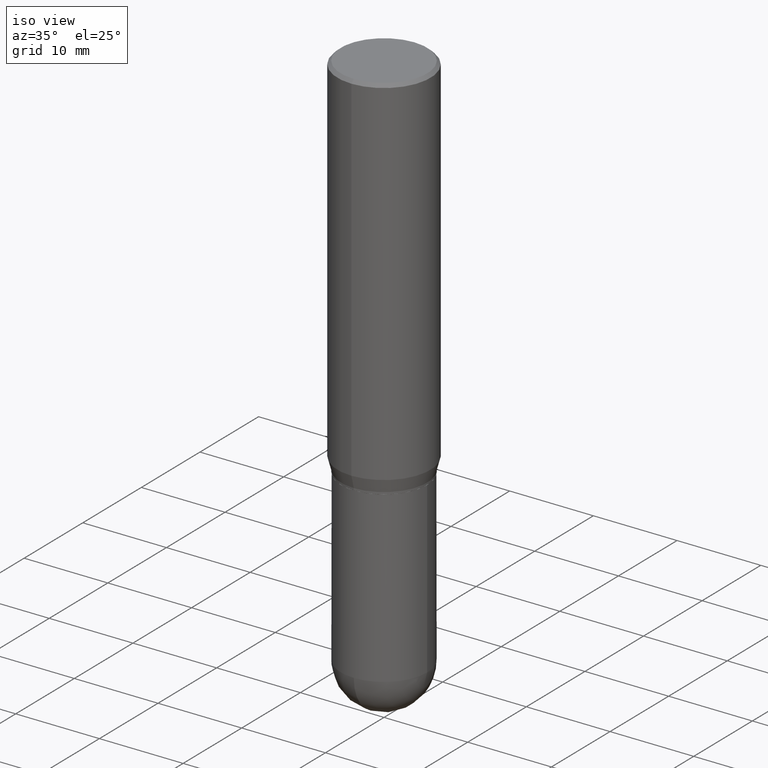
[diagram: clean part render]
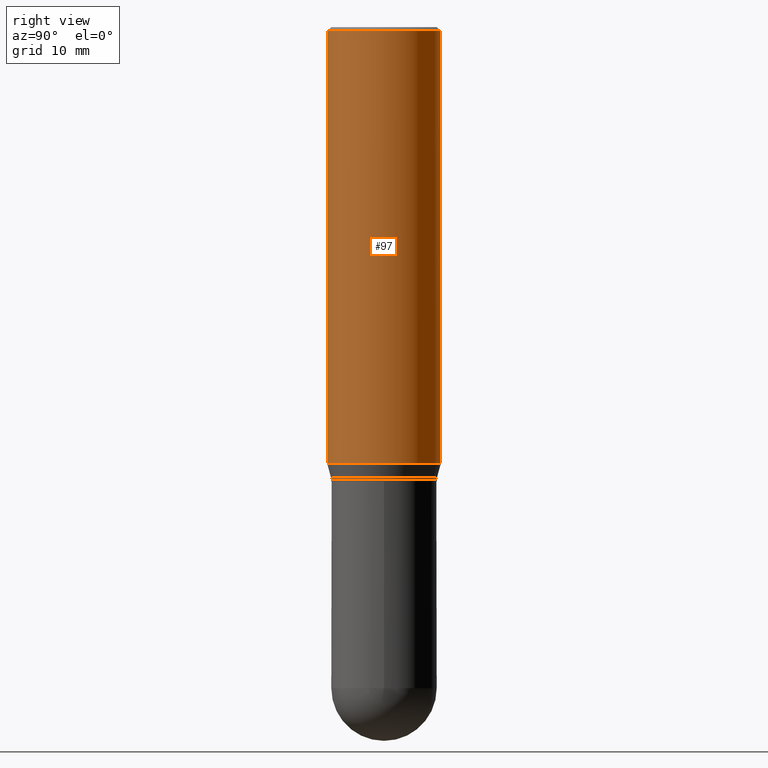
[diagram: tour spotlight — one face highlighted and labeled with its STEP entity id]
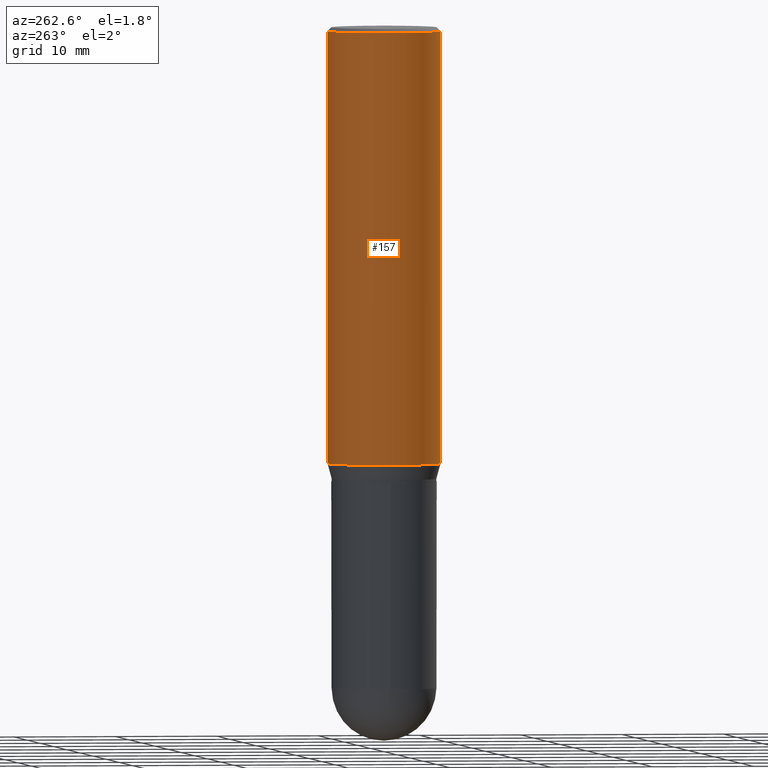
[diagram: tour spotlight — one face highlighted and labeled with its STEP entity id]
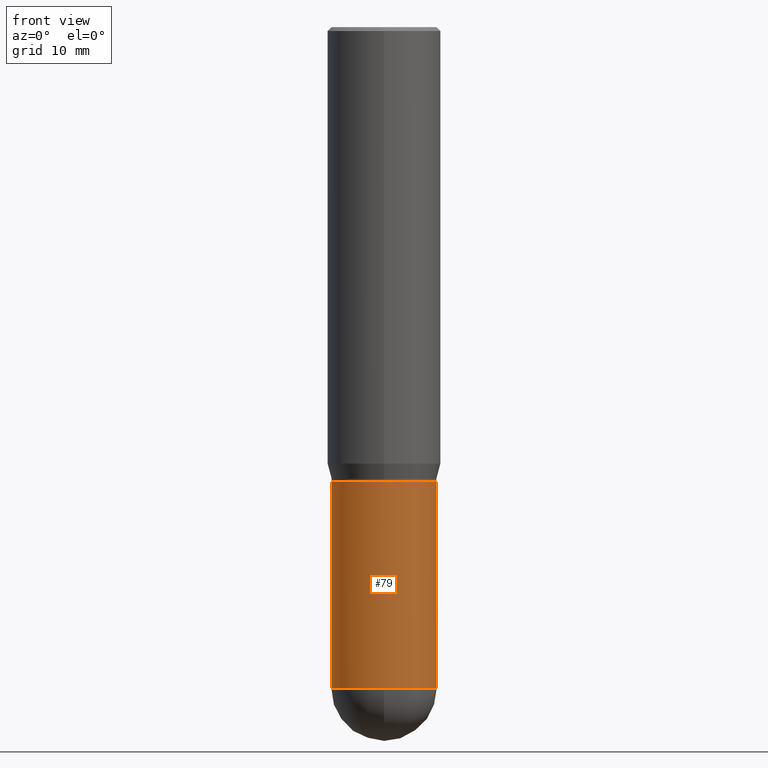
[diagram: tour spotlight — one face highlighted and labeled with its STEP entity id]
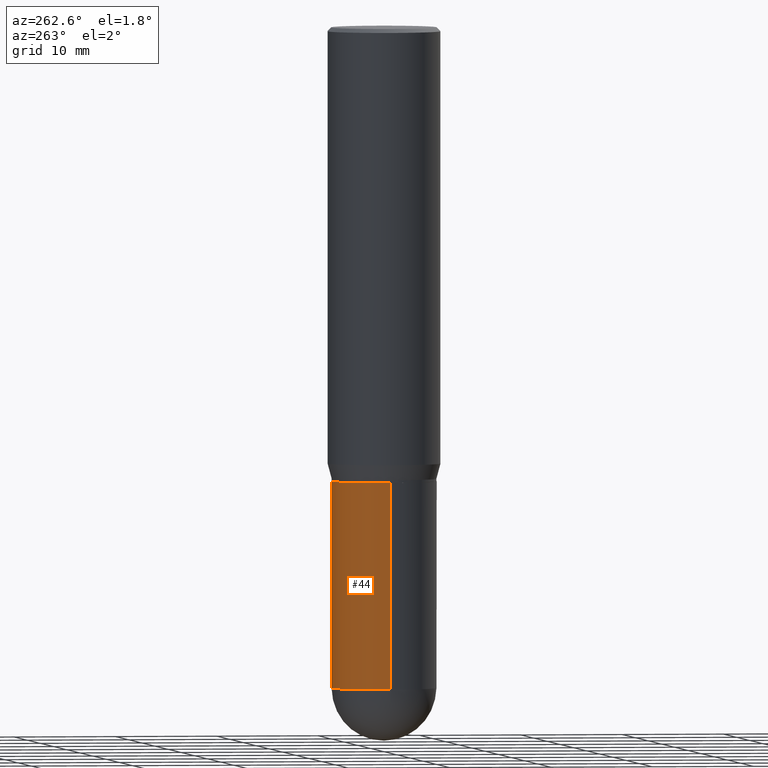
[diagram: tour spotlight — one face highlighted and labeled with its STEP entity id]
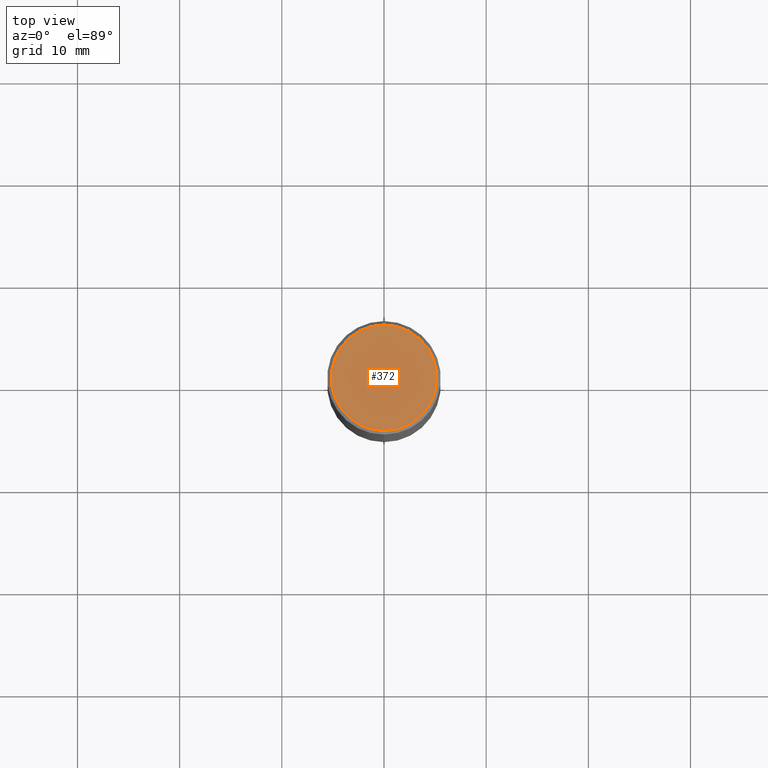
[diagram: tour spotlight — one face highlighted and labeled with its STEP entity id]
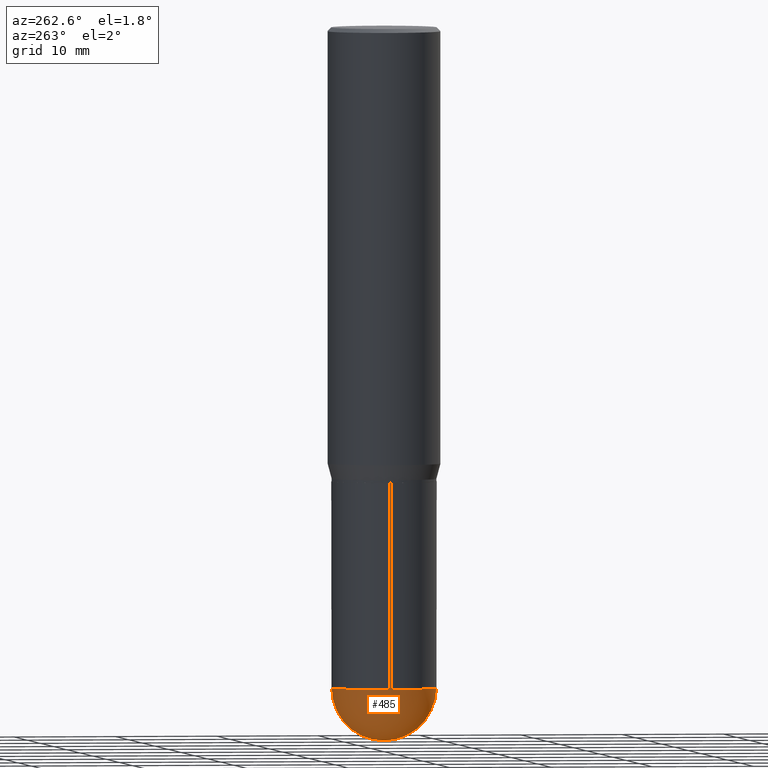
[diagram: tour spotlight — one face highlighted and labeled with its STEP entity id]
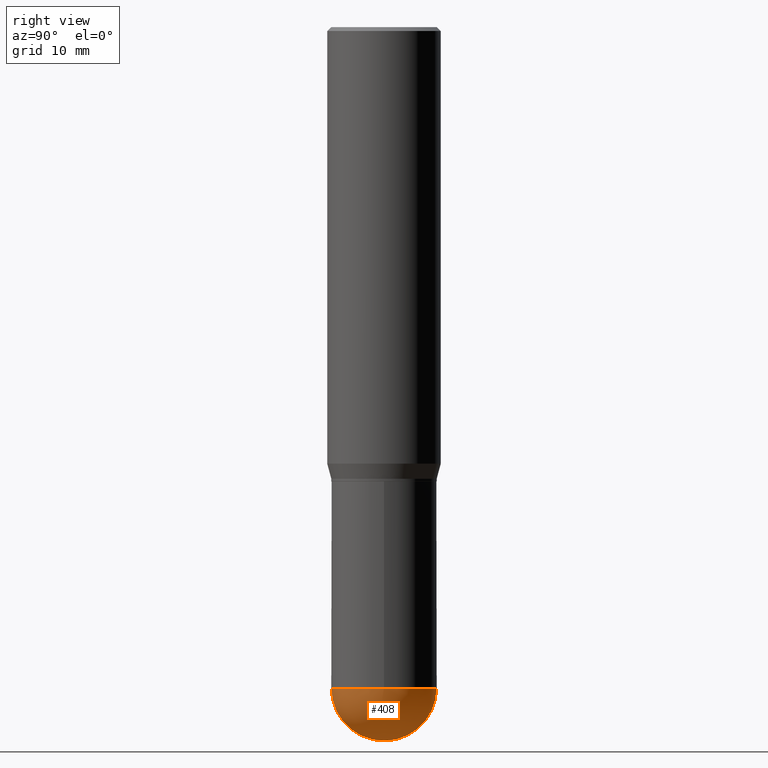
[diagram: tour spotlight — one face highlighted and labeled with its STEP entity id]
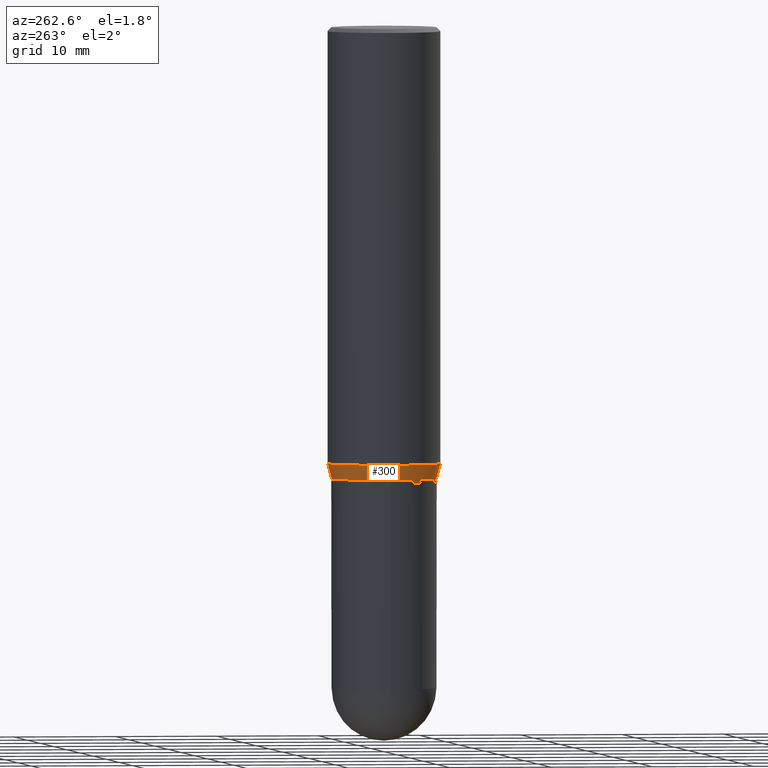
[diagram: tour spotlight — one face highlighted and labeled with its STEP entity id]
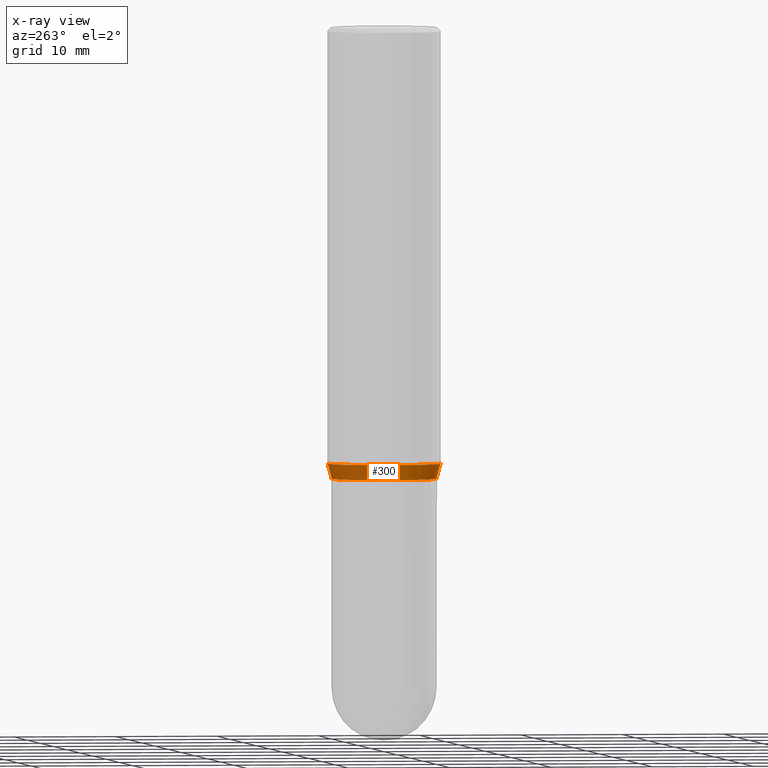
[diagram: x-ray of the same camera — body ghosted, this tour face saturated]
A machine part: a face-by-face anatomy tour. The part has 17 B-rep faces; the first image is the clean iso view, then the 8 largest visible faces are spotlighted one at a time (largest first), each with its STEP entity span.

Face 1 — right view, entity #97. In plain terms, the highlighted cylindrical surface (partial cylindrical patch) has radius 5.5562 mm, axis along (-0, 0, 1).
Definition (entity closure, byte-faithful):
#3 = EDGE_LOOP ( 'NONE', ( #158, #72, #414, #426 ) ) ;
#7 = CARTESIAN_POINT ( 'NONE',  ( -1.527523085743870449E-15, -0.2187500000000000000, 7.637740546004402196E-16 ) ) ;
#20 = VERTEX_POINT ( 'NONE', #364 ) ;
#42 = CARTESIAN_POINT ( 'NONE',  ( 1.554312234475260177E-15, 0.2187499999999941436, -1.681593404861547958 ) ) ;
#72 = ORIENTED_EDGE ( 'NONE', *, *, #234, .T. ) ;
#97 = ADVANCED_FACE ( 'NONE', ( #182 ), #346, .T. ) ;
#106 = EDGE_CURVE ( 'NONE', #320, #259, #457, .T. ) ;
#111 = DIRECTION ( 'NONE',  ( -2.445428866101404443E-29, 3.491538535316298316E-15, 1.000000000000000000 ) ) ;
#134 = AXIS2_PLACEMENT_3D ( 'NONE', #156, #401, #163 ) ;
#154 = VERTEX_POINT ( 'NONE', #42 ) ;
#156 = CARTESIAN_POINT ( 'NONE',  ( 4.112217053294172949E-29, -5.871348173807832947E-15, -1.681593404861547070 ) ) ;
#158 = ORIENTED_EDGE ( 'NONE', *, *, #497, .T. ) ;
#163 = DIRECTION ( 'NONE',  ( -6.982962677686265133E-15, -1.000000000000000000, 3.746534391310989557E-15 ) ) ;
#168 = VECTOR ( 'NONE', #468, 39.37007874015748143 ) ;
#182 = FACE_OUTER_BOUND ( 'NONE', #3, .T. ) ;
#184 = CARTESIAN_POINT ( 'NONE',  ( -1.527523085743870054E-15, -0.2187500000000000555, -0.01499999999999934892 ) ) ;
#226 = AXIS2_PLACEMENT_3D ( 'NONE', #441, #317, #328 ) ;
#234 = EDGE_CURVE ( 'NONE', #154, #259, #298, .T. ) ;
#259 = VERTEX_POINT ( 'NONE', #380 ) ;
#298 = LINE ( 'NONE', #455, #330 ) ;
#301 = CIRCLE ( 'NONE', #134, 0.2187500000000000000 ) ;
#311 = CARTESIAN_POINT ( 'NONE',  ( 0.000000000000000000, 0.000000000000000000, 0.000000000000000000 ) ) ;
#317 = DIRECTION ( 'NONE',  ( -2.445428866101404443E-29, 3.491538535316298316E-15, 1.000000000000000000 ) ) ;
#320 = VERTEX_POINT ( 'NONE', #184 ) ;
#328 = DIRECTION ( 'NONE',  ( -6.982962677686265133E-15, -1.000000000000000000, 3.492862791899308071E-15 ) ) ;
#330 = VECTOR ( 'NONE', #424, 39.37007874015748143 ) ;
#346 = CYLINDRICAL_SURFACE ( 'NONE', #402, 0.2187500000000000000 ) ;
#364 = CARTESIAN_POINT ( 'NONE',  ( -1.527523085743829428E-15, -0.2187500000000058287, -1.681593404861546404 ) ) ;
#380 = CARTESIAN_POINT ( 'NONE',  ( 1.554312234475260375E-15, 0.2187499999999999167, -0.01500000000000087721 ) ) ;
#395 = LINE ( 'NONE', #7, #168 ) ;
#400 = DIRECTION ( 'NONE',  ( -6.982962677686265133E-15, -1.000000000000000000, 3.491538535316298316E-15 ) ) ;
#401 = DIRECTION ( 'NONE',  ( -2.445428866101404443E-29, 3.491538535316298316E-15, 1.000000000000000000 ) ) ;
#402 = AXIS2_PLACEMENT_3D ( 'NONE', #311, #111, #400 ) ;
#414 = ORIENTED_EDGE ( 'NONE', *, *, #106, .F. ) ;
#424 = DIRECTION ( 'NONE',  ( -2.445428866101404162E-29, 3.491538535316297921E-15, 1.000000000000000000 ) ) ;
#426 = ORIENTED_EDGE ( 'NONE', *, *, #465, .F. ) ;
#441 = CARTESIAN_POINT ( 'NONE',  ( 3.668143299152134304E-31, -5.237307802974486843E-17, -0.01500000000000011394 ) ) ;
#455 = CARTESIAN_POINT ( 'NONE',  ( 1.554312234475218762E-15, 0.2187500000000000000, -7.637740546004402196E-16 ) ) ;
#457 = CIRCLE ( 'NONE', #226, 0.2187500000000000000 ) ;
#465 = EDGE_CURVE ( 'NONE', #20, #320, #395, .T. ) ;
#468 = DIRECTION ( 'NONE',  ( -2.445428866101404162E-29, 3.491538535316297921E-15, 1.000000000000000000 ) ) ;
#497 = EDGE_CURVE ( 'NONE', #20, #154, #301, .T. ) ;

Face 2 — auxiliary view, entity #157. In plain terms, the highlighted cylindrical surface (partial cylindrical patch) has radius 5.5562 mm, axis along (-0, 0, 1).
Definition (entity closure, byte-faithful):
#7 = CARTESIAN_POINT ( 'NONE',  ( -1.527523085743870449E-15, -0.2187500000000000000, 7.637740546004402196E-16 ) ) ;
#20 = VERTEX_POINT ( 'NONE', #364 ) ;
#36 = ORIENTED_EDGE ( 'NONE', *, *, #465, .T. ) ;
#42 = CARTESIAN_POINT ( 'NONE',  ( 1.554312234475260177E-15, 0.2187499999999941436, -1.681593404861547958 ) ) ;
#45 = ORIENTED_EDGE ( 'NONE', *, *, #65, .T. ) ;
#51 = FACE_OUTER_BOUND ( 'NONE', #472, .T. ) ;
#58 = AXIS2_PLACEMENT_3D ( 'NONE', #503, #231, #222 ) ;
#65 = EDGE_CURVE ( 'NONE', #154, #20, #308, .T. ) ;
#101 = ORIENTED_EDGE ( 'NONE', *, *, #386, .F. ) ;
#154 = VERTEX_POINT ( 'NONE', #42 ) ;
#157 = ADVANCED_FACE ( 'NONE', ( #51 ), #230, .T. ) ;
#168 = VECTOR ( 'NONE', #468, 39.37007874015748143 ) ;
#175 = CARTESIAN_POINT ( 'NONE',  ( 0.000000000000000000, 0.000000000000000000, 0.000000000000000000 ) ) ;
#181 = DIRECTION ( 'NONE',  ( -2.445428866101404443E-29, 3.491538535316298316E-15, 1.000000000000000000 ) ) ;
#184 = CARTESIAN_POINT ( 'NONE',  ( -1.527523085743870054E-15, -0.2187500000000000555, -0.01499999999999934892 ) ) ;
#196 = AXIS2_PLACEMENT_3D ( 'NONE', #175, #181, #387 ) ;
#222 = DIRECTION ( 'NONE',  ( -6.982962677686265133E-15, -1.000000000000000000, 3.746534391310989557E-15 ) ) ;
#230 = CYLINDRICAL_SURFACE ( 'NONE', #196, 0.2187500000000000000 ) ;
#231 = DIRECTION ( 'NONE',  ( -2.445428866101404443E-29, 3.491538535316298316E-15, 1.000000000000000000 ) ) ;
#234 = EDGE_CURVE ( 'NONE', #154, #259, #298, .T. ) ;
#243 = CIRCLE ( 'NONE', #384, 0.2187500000000000000 ) ;
#244 = ORIENTED_EDGE ( 'NONE', *, *, #234, .F. ) ;
#245 = DIRECTION ( 'NONE',  ( -2.445428866101404443E-29, 3.491538535316298316E-15, 1.000000000000000000 ) ) ;
#259 = VERTEX_POINT ( 'NONE', #380 ) ;
#298 = LINE ( 'NONE', #455, #330 ) ;
#308 = CIRCLE ( 'NONE', #58, 0.2187500000000000000 ) ;
#314 = DIRECTION ( 'NONE',  ( -6.982962677686265133E-15, -1.000000000000000000, 3.492862791899308071E-15 ) ) ;
#320 = VERTEX_POINT ( 'NONE', #184 ) ;
#330 = VECTOR ( 'NONE', #424, 39.37007874015748143 ) ;
#364 = CARTESIAN_POINT ( 'NONE',  ( -1.527523085743829428E-15, -0.2187500000000058287, -1.681593404861546404 ) ) ;
#380 = CARTESIAN_POINT ( 'NONE',  ( 1.554312234475260375E-15, 0.2187499999999999167, -0.01500000000000087721 ) ) ;
#384 = AXIS2_PLACEMENT_3D ( 'NONE', #511, #245, #314 ) ;
#386 = EDGE_CURVE ( 'NONE', #259, #320, #243, .T. ) ;
#387 = DIRECTION ( 'NONE',  ( -6.982962677686265133E-15, -1.000000000000000000, 3.491538535316298316E-15 ) ) ;
#395 = LINE ( 'NONE', #7, #168 ) ;
#424 = DIRECTION ( 'NONE',  ( -2.445428866101404162E-29, 3.491538535316297921E-15, 1.000000000000000000 ) ) ;
#455 = CARTESIAN_POINT ( 'NONE',  ( 1.554312234475218762E-15, 0.2187500000000000000, -7.637740546004402196E-16 ) ) ;
#465 = EDGE_CURVE ( 'NONE', #20, #320, #395, .T. ) ;
#468 = DIRECTION ( 'NONE',  ( -2.445428866101404162E-29, 3.491538535316297921E-15, 1.000000000000000000 ) ) ;
#472 = EDGE_LOOP ( 'NONE', ( #244, #45, #36, #101 ) ) ;
#503 = CARTESIAN_POINT ( 'NONE',  ( 4.112217053294172949E-29, -5.871348173807832947E-15, -1.681593404861547070 ) ) ;
#511 = CARTESIAN_POINT ( 'NONE',  ( 3.668143299152134304E-31, -5.237307802974486843E-17, -0.01500000000000011394 ) ) ;

Face 3 — front view, entity #79. In plain terms, the highlighted cylindrical surface (partial cylindrical patch) has radius 5.1587 mm, axis along (-0, 0, 1).
Definition (entity closure, byte-faithful):
#5 = ORIENTED_EDGE ( 'NONE', *, *, #32, .T. ) ;
#17 = CARTESIAN_POINT ( 'NONE',  ( 6.228364502472924746E-29, -8.892453821899607499E-15, -2.546899999999999942 ) ) ;
#22 = VERTEX_POINT ( 'NONE', #142 ) ;
#23 = DIRECTION ( 'NONE',  ( -2.445468806185136597E-29, 3.491481338843145583E-15, 1.000000000000000000 ) ) ;
#24 = DIRECTION ( 'NONE',  ( 1.000000000000000000, -6.982962677686266711E-15, 4.876176775795935793E-29 ) ) ;
#32 = EDGE_CURVE ( 'NONE', #162, #347, #383, .T. ) ;
#70 = LINE ( 'NONE', #99, #276 ) ;
#71 = CARTESIAN_POINT ( 'NONE',  ( 0.2031000000000000028, -1.418239719838080775E-15, 9.903515031641546145E-30 ) ) ;
#79 = ADVANCED_FACE ( 'NONE', ( #306 ), #351, .T. ) ;
#99 = CARTESIAN_POINT ( 'NONE',  ( -0.2031000000000000028, 1.443112296328763497E-15, -9.990357168307714203E-30 ) ) ;
#103 = DIRECTION ( 'NONE',  ( 1.000000000000000000, -6.982962677686269866E-15, 0.000000000000000000 ) ) ;
#142 = CARTESIAN_POINT ( 'NONE',  ( -0.2031000000000000028, -6.058160786108792588E-15, -1.750000000000000000 ) ) ;
#148 = DIRECTION ( 'NONE',  ( -2.445468806185136597E-29, 3.491481338843145583E-15, 1.000000000000000000 ) ) ;
#155 = CARTESIAN_POINT ( 'NONE',  ( 0.2031000000000000028, -7.528332062813585446E-15, -1.750000000000000000 ) ) ;
#160 = EDGE_LOOP ( 'NONE', ( #165, #5, #443, #272, #466 ) ) ;
#162 = VERTEX_POINT ( 'NONE', #345 ) ;
#165 = ORIENTED_EDGE ( 'NONE', *, *, #247, .F. ) ;
#172 = AXIS2_PLACEMENT_3D ( 'NONE', #218, #23, #177 ) ;
#176 = VERTEX_POINT ( 'NONE', #461 ) ;
#177 = DIRECTION ( 'NONE',  ( 1.000000000000000000, -6.982962677686262766E-15, 0.000000000000000000 ) ) ;
#178 = VECTOR ( 'NONE', #239, 39.37007874015748143 ) ;
#183 = EDGE_CURVE ( 'NONE', #347, #176, #488, .T. ) ;
#216 = CIRCLE ( 'NONE', #505, 0.2031000000000000028 ) ;
#218 = CARTESIAN_POINT ( 'NONE',  ( 6.228364502472924746E-29, -8.892453821899607499E-15, -2.546899999999999942 ) ) ;
#236 = AXIS2_PLACEMENT_3D ( 'NONE', #17, #299, #419 ) ;
#239 = DIRECTION ( 'NONE',  ( -2.445468806185136877E-29, 3.491481338843145188E-15, 1.000000000000000000 ) ) ;
#247 = EDGE_CURVE ( 'NONE', #162, #22, #70, .T. ) ;
#261 = DIRECTION ( 'NONE',  ( -2.445468806185136877E-29, 3.491481338843145188E-15, 1.000000000000000000 ) ) ;
#267 = CARTESIAN_POINT ( 'NONE',  ( 4.279570410823988484E-29, -6.110092342975504671E-15, -1.750000000000000000 ) ) ;
#272 = ORIENTED_EDGE ( 'NONE', *, *, #333, .T. ) ;
#273 = CARTESIAN_POINT ( 'NONE',  ( -1.443112296328700980E-15, -0.2031000000000088845, -2.546899999999999498 ) ) ;
#276 = VECTOR ( 'NONE', #261, 39.37007874015748143 ) ;
#287 = EDGE_CURVE ( 'NONE', #22, #324, #216, .T. ) ;
#299 = DIRECTION ( 'NONE',  ( -2.445468806185136597E-29, 3.491481338843145583E-15, 1.000000000000000000 ) ) ;
#306 = FACE_OUTER_BOUND ( 'NONE', #160, .T. ) ;
#324 = VERTEX_POINT ( 'NONE', #155 ) ;
#333 = EDGE_CURVE ( 'NONE', #176, #324, #470, .T. ) ;
#345 = CARTESIAN_POINT ( 'NONE',  ( -0.2031000000000000583, -6.058160786108791010E-15, -2.546899999999999942 ) ) ;
#347 = VERTEX_POINT ( 'NONE', #273 ) ;
#351 = CYLINDRICAL_SURFACE ( 'NONE', #482, 0.2031000000000000028 ) ;
#381 = CARTESIAN_POINT ( 'NONE',  ( 0.000000000000000000, 0.000000000000000000, 0.000000000000000000 ) ) ;
#383 = CIRCLE ( 'NONE', #236, 0.2031000000000000583 ) ;
#419 = DIRECTION ( 'NONE',  ( 1.000000000000000000, -6.982962677686262766E-15, 0.000000000000000000 ) ) ;
#420 = DIRECTION ( 'NONE',  ( -2.445468806185136597E-29, 3.491481338843145583E-15, 1.000000000000000000 ) ) ;
#443 = ORIENTED_EDGE ( 'NONE', *, *, #183, .T. ) ;
#461 = CARTESIAN_POINT ( 'NONE',  ( 0.2031000000000000583, -8.919512802275635677E-15, -2.546899999999999942 ) ) ;
#466 = ORIENTED_EDGE ( 'NONE', *, *, #287, .F. ) ;
#470 = LINE ( 'NONE', #71, #178 ) ;
#482 = AXIS2_PLACEMENT_3D ( 'NONE', #381, #148, #24 ) ;
#488 = CIRCLE ( 'NONE', #172, 0.2031000000000000583 ) ;
#505 = AXIS2_PLACEMENT_3D ( 'NONE', #267, #420, #103 ) ;

Face 4 — auxiliary view, entity #44. In plain terms, the highlighted cylindrical surface (partial cylindrical patch) has radius 5.1587 mm, axis along (-0, 0, 1).
Definition (entity closure, byte-faithful):
#4 = AXIS2_PLACEMENT_3D ( 'NONE', #265, #104, #502 ) ;
#22 = VERTEX_POINT ( 'NONE', #142 ) ;
#34 = CIRCLE ( 'NONE', #4, 0.2031000000000000583 ) ;
#38 = DIRECTION ( 'NONE',  ( -2.445468806185136597E-29, 3.491481338843145583E-15, 1.000000000000000000 ) ) ;
#44 = ADVANCED_FACE ( 'NONE', ( #450 ), #93, .T. ) ;
#59 = AXIS2_PLACEMENT_3D ( 'NONE', #430, #270, #232 ) ;
#70 = LINE ( 'NONE', #99, #276 ) ;
#71 = CARTESIAN_POINT ( 'NONE',  ( 0.2031000000000000028, -1.418239719838080775E-15, 9.903515031641546145E-30 ) ) ;
#92 = CIRCLE ( 'NONE', #59, 0.2031000000000000028 ) ;
#93 = CYLINDRICAL_SURFACE ( 'NONE', #159, 0.2031000000000000028 ) ;
#99 = CARTESIAN_POINT ( 'NONE',  ( -0.2031000000000000028, 1.443112296328763497E-15, -9.990357168307714203E-30 ) ) ;
#104 = DIRECTION ( 'NONE',  ( -2.445468806185136597E-29, 3.491481338843145583E-15, 1.000000000000000000 ) ) ;
#114 = DIRECTION ( 'NONE',  ( 1.000000000000000000, -6.982962677686262766E-15, 0.000000000000000000 ) ) ;
#142 = CARTESIAN_POINT ( 'NONE',  ( -0.2031000000000000028, -6.058160786108792588E-15, -1.750000000000000000 ) ) ;
#150 = ORIENTED_EDGE ( 'NONE', *, *, #376, .F. ) ;
#155 = CARTESIAN_POINT ( 'NONE',  ( 0.2031000000000000028, -7.528332062813585446E-15, -1.750000000000000000 ) ) ;
#159 = AXIS2_PLACEMENT_3D ( 'NONE', #171, #255, #331 ) ;
#162 = VERTEX_POINT ( 'NONE', #345 ) ;
#171 = CARTESIAN_POINT ( 'NONE',  ( 0.000000000000000000, 0.000000000000000000, 0.000000000000000000 ) ) ;
#176 = VERTEX_POINT ( 'NONE', #461 ) ;
#178 = VECTOR ( 'NONE', #239, 39.37007874015748143 ) ;
#193 = ORIENTED_EDGE ( 'NONE', *, *, #247, .T. ) ;
#206 = CIRCLE ( 'NONE', #433, 0.2031000000000000583 ) ;
#209 = EDGE_CURVE ( 'NONE', #335, #162, #34, .T. ) ;
#219 = EDGE_LOOP ( 'NONE', ( #389, #193, #150, #396, #452 ) ) ;
#232 = DIRECTION ( 'NONE',  ( 1.000000000000000000, -6.982962677686269866E-15, 0.000000000000000000 ) ) ;
#239 = DIRECTION ( 'NONE',  ( -2.445468806185136877E-29, 3.491481338843145188E-15, 1.000000000000000000 ) ) ;
#247 = EDGE_CURVE ( 'NONE', #162, #22, #70, .T. ) ;
#255 = DIRECTION ( 'NONE',  ( -2.445468806185136597E-29, 3.491481338843145583E-15, 1.000000000000000000 ) ) ;
#261 = DIRECTION ( 'NONE',  ( -2.445468806185136877E-29, 3.491481338843145188E-15, 1.000000000000000000 ) ) ;
#265 = CARTESIAN_POINT ( 'NONE',  ( 6.228364502472924746E-29, -8.892453821899607499E-15, -2.546899999999999942 ) ) ;
#270 = DIRECTION ( 'NONE',  ( -2.445468806185136597E-29, 3.491481338843145583E-15, 1.000000000000000000 ) ) ;
#276 = VECTOR ( 'NONE', #261, 39.37007874015748143 ) ;
#281 = CARTESIAN_POINT ( 'NONE',  ( 6.228364502472924746E-29, -8.892453821899607499E-15, -2.546899999999999942 ) ) ;
#324 = VERTEX_POINT ( 'NONE', #155 ) ;
#331 = DIRECTION ( 'NONE',  ( 1.000000000000000000, -6.982962677686266711E-15, 4.876176775795935793E-29 ) ) ;
#333 = EDGE_CURVE ( 'NONE', #176, #324, #470, .T. ) ;
#335 = VERTEX_POINT ( 'NONE', #357 ) ;
#345 = CARTESIAN_POINT ( 'NONE',  ( -0.2031000000000000583, -6.058160786108791010E-15, -2.546899999999999942 ) ) ;
#357 = CARTESIAN_POINT ( 'NONE',  ( 1.418239719838142898E-15, 0.2030999999999910932, -2.546900000000000830 ) ) ;
#376 = EDGE_CURVE ( 'NONE', #324, #22, #92, .T. ) ;
#389 = ORIENTED_EDGE ( 'NONE', *, *, #209, .T. ) ;
#396 = ORIENTED_EDGE ( 'NONE', *, *, #333, .F. ) ;
#425 = EDGE_CURVE ( 'NONE', #176, #335, #206, .T. ) ;
#430 = CARTESIAN_POINT ( 'NONE',  ( 4.279570410823988484E-29, -6.110092342975504671E-15, -1.750000000000000000 ) ) ;
#433 = AXIS2_PLACEMENT_3D ( 'NONE', #281, #38, #114 ) ;
#450 = FACE_OUTER_BOUND ( 'NONE', #219, .T. ) ;
#452 = ORIENTED_EDGE ( 'NONE', *, *, #425, .T. ) ;
#461 = CARTESIAN_POINT ( 'NONE',  ( 0.2031000000000000583, -8.919512802275635677E-15, -2.546899999999999942 ) ) ;
#470 = LINE ( 'NONE', #71, #178 ) ;
#502 = DIRECTION ( 'NONE',  ( 1.000000000000000000, -6.982962677686262766E-15, 0.000000000000000000 ) ) ;

Face 5 — top view, entity #372. In plain terms, the highlighted planar face has unit normal (0, -0, -1).
Definition (entity closure, byte-faithful):
#40 = FACE_OUTER_BOUND ( 'NONE', #78, .T. ) ;
#78 = EDGE_LOOP ( 'NONE', ( #406, #284 ) ) ;
#80 = DIRECTION ( 'NONE',  ( -6.982962677686265133E-15, -1.000000000000000000, 3.491538535316298316E-15 ) ) ;
#118 = CIRCLE ( 'NONE', #286, 0.2037499999999999867 ) ;
#140 = VERTEX_POINT ( 'NONE', #277 ) ;
#187 = AXIS2_PLACEMENT_3D ( 'NONE', #354, #427, #194 ) ;
#188 = DIRECTION ( 'NONE',  ( -6.982962677686265133E-15, -1.000000000000000000, 3.491538535316298316E-15 ) ) ;
#191 = CARTESIAN_POINT ( 'NONE',  ( 2.741164584547628974E-45, -3.913784576302397328E-31, -1.120934091580303315E-16 ) ) ;
#194 = DIRECTION ( 'NONE',  ( 6.982962677686265922E-15, 1.000000000000000000, -3.491538535316297921E-15 ) ) ;
#195 = DIRECTION ( 'NONE',  ( -2.445428866101404443E-29, 3.491538535316298316E-15, 1.000000000000000000 ) ) ;
#198 = AXIS2_PLACEMENT_3D ( 'NONE', #474, #195, #188 ) ;
#260 = CIRCLE ( 'NONE', #198, 0.2037499999999999867 ) ;
#277 = CARTESIAN_POINT ( 'NONE',  ( -1.449280202029235538E-15, -0.2037499999999999867, 5.993075674126653216E-16 ) ) ;
#284 = ORIENTED_EDGE ( 'NONE', *, *, #319, .T. ) ;
#286 = AXIS2_PLACEMENT_3D ( 'NONE', #191, #390, #80 ) ;
#318 = CARTESIAN_POINT ( 'NONE',  ( 1.475150865661223764E-15, 0.2037499999999999867, -8.234943857287259354E-16 ) ) ;
#319 = EDGE_CURVE ( 'NONE', #140, #510, #118, .T. ) ;
#354 = CARTESIAN_POINT ( 'NONE',  ( 1.422778645578576487E-15, 0.2037499999999999867, -7.674476811497108312E-16 ) ) ;
#372 = ADVANCED_FACE ( 'NONE', ( #40 ), #436, .F. ) ;
#390 = DIRECTION ( 'NONE',  ( -2.445428866101404443E-29, 3.491538535316298316E-15, 1.000000000000000000 ) ) ;
#392 = EDGE_CURVE ( 'NONE', #510, #140, #260, .T. ) ;
#406 = ORIENTED_EDGE ( 'NONE', *, *, #392, .T. ) ;
#427 = DIRECTION ( 'NONE',  ( 2.445428866101404443E-29, -3.491538535316297921E-15, -1.000000000000000000 ) ) ;
#436 = PLANE ( 'NONE',  #187 ) ;
#474 = CARTESIAN_POINT ( 'NONE',  ( 2.741164584547628974E-45, -3.913784576302397328E-31, -1.120934091580303315E-16 ) ) ;
#510 = VERTEX_POINT ( 'NONE', #318 ) ;

Face 6 — auxiliary view, entity #485. In plain terms, the highlighted spherical surface has radius 5.1587 mm.
Definition (entity closure, byte-faithful):
#2 = DIRECTION ( 'NONE',  ( 1.000000000000000000, -6.982962677686265922E-15, 4.883557194083112340E-29 ) ) ;
#4 = AXIS2_PLACEMENT_3D ( 'NONE', #265, #104, #502 ) ;
#17 = CARTESIAN_POINT ( 'NONE',  ( 6.228364502472924746E-29, -8.892453821899607499E-15, -2.546899999999999942 ) ) ;
#29 = DIRECTION ( 'NONE',  ( -1.000000000000000000, 7.105427357601001070E-15, -4.926315508542082329E-29 ) ) ;
#32 = EDGE_CURVE ( 'NONE', #162, #347, #383, .T. ) ;
#33 = CARTESIAN_POINT ( 'NONE',  ( 6.716355003342508555E-29, -9.614009970063991023E-15, -2.750000000000000000 ) ) ;
#34 = CIRCLE ( 'NONE', #4, 0.2031000000000000583 ) ;
#63 = EDGE_CURVE ( 'NONE', #307, #347, #205, .T. ) ;
#74 = DIRECTION ( 'NONE',  ( -1.000000000000000000, 6.982962677686266711E-15, -4.883557194083112901E-29 ) ) ;
#76 = AXIS2_PLACEMENT_3D ( 'NONE', #197, #2, #361 ) ;
#82 = DIRECTION ( 'NONE',  ( 6.982962677686266711E-15, 1.000000000000000000, -2.690150658458162309E-15 ) ) ;
#87 = ORIENTED_EDGE ( 'NONE', *, *, #63, .T. ) ;
#104 = DIRECTION ( 'NONE',  ( -2.445468806185136597E-29, 3.491481338843145583E-15, 1.000000000000000000 ) ) ;
#107 = CARTESIAN_POINT ( 'NONE',  ( 6.210996075139691695E-29, -8.917326398390289827E-15, -2.546899999999999942 ) ) ;
#126 = AXIS2_PLACEMENT_3D ( 'NONE', #512, #74, #82 ) ;
#143 = CIRCLE ( 'NONE', #76, 0.2030999999999999472 ) ;
#162 = VERTEX_POINT ( 'NONE', #345 ) ;
#186 = DIRECTION ( 'NONE',  ( -7.105427357601001070E-15, -1.000000000000000000, 0.000000000000000000 ) ) ;
#197 = CARTESIAN_POINT ( 'NONE',  ( 6.210996075139691695E-29, -8.917326398390289827E-15, -2.546899999999999942 ) ) ;
#201 = ORIENTED_EDGE ( 'NONE', *, *, #209, .F. ) ;
#205 = CIRCLE ( 'NONE', #504, 0.2030999999999999472 ) ;
#209 = EDGE_CURVE ( 'NONE', #335, #162, #34, .T. ) ;
#236 = AXIS2_PLACEMENT_3D ( 'NONE', #17, #299, #419 ) ;
#241 = FACE_OUTER_BOUND ( 'NONE', #312, .T. ) ;
#265 = CARTESIAN_POINT ( 'NONE',  ( 6.228364502472924746E-29, -8.892453821899607499E-15, -2.546899999999999942 ) ) ;
#273 = CARTESIAN_POINT ( 'NONE',  ( -1.443112296328700980E-15, -0.2031000000000088845, -2.546899999999999498 ) ) ;
#299 = DIRECTION ( 'NONE',  ( -2.445468806185136597E-29, 3.491481338843145583E-15, 1.000000000000000000 ) ) ;
#307 = VERTEX_POINT ( 'NONE', #33 ) ;
#312 = EDGE_LOOP ( 'NONE', ( #501, #87, #359, #201 ) ) ;
#323 = SPHERICAL_SURFACE ( 'NONE', #126, 0.2030999999999999472 ) ;
#335 = VERTEX_POINT ( 'NONE', #357 ) ;
#345 = CARTESIAN_POINT ( 'NONE',  ( -0.2031000000000000583, -6.058160786108791010E-15, -2.546899999999999942 ) ) ;
#347 = VERTEX_POINT ( 'NONE', #273 ) ;
#357 = CARTESIAN_POINT ( 'NONE',  ( 1.418239719838142898E-15, 0.2030999999999910932, -2.546900000000000830 ) ) ;
#359 = ORIENTED_EDGE ( 'NONE', *, *, #32, .F. ) ;
#361 = DIRECTION ( 'NONE',  ( 6.982962677686266711E-15, 1.000000000000000000, 0.000000000000000000 ) ) ;
#383 = CIRCLE ( 'NONE', #236, 0.2031000000000000583 ) ;
#419 = DIRECTION ( 'NONE',  ( 1.000000000000000000, -6.982962677686262766E-15, 0.000000000000000000 ) ) ;
#453 = EDGE_CURVE ( 'NONE', #307, #335, #143, .T. ) ;
#485 = ADVANCED_FACE ( 'NONE', ( #241 ), #323, .T. ) ;
#501 = ORIENTED_EDGE ( 'NONE', *, *, #453, .F. ) ;
#502 = DIRECTION ( 'NONE',  ( 1.000000000000000000, -6.982962677686262766E-15, 0.000000000000000000 ) ) ;
#504 = AXIS2_PLACEMENT_3D ( 'NONE', #107, #29, #186 ) ;
#512 = CARTESIAN_POINT ( 'NONE',  ( 6.210996075139691695E-29, -8.917326398390289827E-15, -2.546899999999999942 ) ) ;

Face 7 — right view, entity #408. In plain terms, the highlighted spherical surface has radius 5.1587 mm.
Definition (entity closure, byte-faithful):
#2 = DIRECTION ( 'NONE',  ( 1.000000000000000000, -6.982962677686265922E-15, 4.883557194083112340E-29 ) ) ;
#18 = AXIS2_PLACEMENT_3D ( 'NONE', #152, #46, #404 ) ;
#23 = DIRECTION ( 'NONE',  ( -2.445468806185136597E-29, 3.491481338843145583E-15, 1.000000000000000000 ) ) ;
#29 = DIRECTION ( 'NONE',  ( -1.000000000000000000, 7.105427357601001070E-15, -4.926315508542082329E-29 ) ) ;
#33 = CARTESIAN_POINT ( 'NONE',  ( 6.716355003342508555E-29, -9.614009970063991023E-15, -2.750000000000000000 ) ) ;
#38 = DIRECTION ( 'NONE',  ( -2.445468806185136597E-29, 3.491481338843145583E-15, 1.000000000000000000 ) ) ;
#46 = DIRECTION ( 'NONE',  ( -1.000000000000000000, 6.982962677686266711E-15, -4.883557194083112901E-29 ) ) ;
#63 = EDGE_CURVE ( 'NONE', #307, #347, #205, .T. ) ;
#76 = AXIS2_PLACEMENT_3D ( 'NONE', #197, #2, #361 ) ;
#86 = ORIENTED_EDGE ( 'NONE', *, *, #183, .F. ) ;
#107 = CARTESIAN_POINT ( 'NONE',  ( 6.210996075139691695E-29, -8.917326398390289827E-15, -2.546899999999999942 ) ) ;
#109 = EDGE_LOOP ( 'NONE', ( #494, #190, #295, #86 ) ) ;
#114 = DIRECTION ( 'NONE',  ( 1.000000000000000000, -6.982962677686262766E-15, 0.000000000000000000 ) ) ;
#121 = SPHERICAL_SURFACE ( 'NONE', #18, 0.2030999999999999472 ) ;
#143 = CIRCLE ( 'NONE', #76, 0.2030999999999999472 ) ;
#152 = CARTESIAN_POINT ( 'NONE',  ( 6.210996075139691695E-29, -8.917326398390289827E-15, -2.546899999999999942 ) ) ;
#172 = AXIS2_PLACEMENT_3D ( 'NONE', #218, #23, #177 ) ;
#176 = VERTEX_POINT ( 'NONE', #461 ) ;
#177 = DIRECTION ( 'NONE',  ( 1.000000000000000000, -6.982962677686262766E-15, 0.000000000000000000 ) ) ;
#183 = EDGE_CURVE ( 'NONE', #347, #176, #488, .T. ) ;
#186 = DIRECTION ( 'NONE',  ( -7.105427357601001070E-15, -1.000000000000000000, 0.000000000000000000 ) ) ;
#190 = ORIENTED_EDGE ( 'NONE', *, *, #453, .T. ) ;
#197 = CARTESIAN_POINT ( 'NONE',  ( 6.210996075139691695E-29, -8.917326398390289827E-15, -2.546899999999999942 ) ) ;
#205 = CIRCLE ( 'NONE', #504, 0.2030999999999999472 ) ;
#206 = CIRCLE ( 'NONE', #433, 0.2031000000000000583 ) ;
#218 = CARTESIAN_POINT ( 'NONE',  ( 6.228364502472924746E-29, -8.892453821899607499E-15, -2.546899999999999942 ) ) ;
#273 = CARTESIAN_POINT ( 'NONE',  ( -1.443112296328700980E-15, -0.2031000000000088845, -2.546899999999999498 ) ) ;
#281 = CARTESIAN_POINT ( 'NONE',  ( 6.228364502472924746E-29, -8.892453821899607499E-15, -2.546899999999999942 ) ) ;
#283 = FACE_OUTER_BOUND ( 'NONE', #109, .T. ) ;
#295 = ORIENTED_EDGE ( 'NONE', *, *, #425, .F. ) ;
#307 = VERTEX_POINT ( 'NONE', #33 ) ;
#335 = VERTEX_POINT ( 'NONE', #357 ) ;
#347 = VERTEX_POINT ( 'NONE', #273 ) ;
#357 = CARTESIAN_POINT ( 'NONE',  ( 1.418239719838142898E-15, 0.2030999999999910932, -2.546900000000000830 ) ) ;
#361 = DIRECTION ( 'NONE',  ( 6.982962677686266711E-15, 1.000000000000000000, 0.000000000000000000 ) ) ;
#404 = DIRECTION ( 'NONE',  ( 6.982962677686266711E-15, 1.000000000000000000, -2.690150658458162309E-15 ) ) ;
#408 = ADVANCED_FACE ( 'NONE', ( #283 ), #121, .T. ) ;
#425 = EDGE_CURVE ( 'NONE', #176, #335, #206, .T. ) ;
#433 = AXIS2_PLACEMENT_3D ( 'NONE', #281, #38, #114 ) ;
#453 = EDGE_CURVE ( 'NONE', #307, #335, #143, .T. ) ;
#461 = CARTESIAN_POINT ( 'NONE',  ( 0.2031000000000000583, -8.919512802275635677E-15, -2.546899999999999942 ) ) ;
#488 = CIRCLE ( 'NONE', #172, 0.2031000000000000583 ) ;
#494 = ORIENTED_EDGE ( 'NONE', *, *, #63, .F. ) ;
#504 = AXIS2_PLACEMENT_3D ( 'NONE', #107, #29, #186 ) ;

Face 8 — auxiliary view, entity #300. An x-ray twin of the same camera follows (body ghosted, this face saturated) — the face is partly hidden behind the body. In plain terms, the highlighted conical surface has half-angle 15 deg.
Definition (entity closure, byte-faithful):
#9 = EDGE_CURVE ( 'NONE', #55, #154, #96, .T. ) ;
#20 = VERTEX_POINT ( 'NONE', #364 ) ;
#42 = CARTESIAN_POINT ( 'NONE',  ( 1.554312234475260177E-15, 0.2187499999999941436, -1.681593404861547958 ) ) ;
#55 = VERTEX_POINT ( 'NONE', #490 ) ;
#57 = ORIENTED_EDGE ( 'NONE', *, *, #475, .T. ) ;
#58 = AXIS2_PLACEMENT_3D ( 'NONE', #503, #231, #222 ) ;
#65 = EDGE_CURVE ( 'NONE', #154, #20, #308, .T. ) ;
#67 = CARTESIAN_POINT ( 'NONE',  ( 4.255046227016444789E-29, -6.075277051450358762E-15, -1.739999999999999991 ) ) ;
#69 = CIRCLE ( 'NONE', #360, 0.2030999999999999472 ) ;
#96 = LINE ( 'NONE', #338, #417 ) ;
#108 = AXIS2_PLACEMENT_3D ( 'NONE', #67, #229, #385 ) ;
#124 = ORIENTED_EDGE ( 'NONE', *, *, #9, .F. ) ;
#147 = CARTESIAN_POINT ( 'NONE',  ( -1.418239719838037782E-15, -0.2031000000000060257, -1.739999999999999103 ) ) ;
#154 = VERTEX_POINT ( 'NONE', #42 ) ;
#192 = LINE ( 'NONE', #439, #349 ) ;
#222 = DIRECTION ( 'NONE',  ( -6.982962677686265133E-15, -1.000000000000000000, 3.746534391310989557E-15 ) ) ;
#229 = DIRECTION ( 'NONE',  ( -2.445428866101404443E-29, 3.491538535316298316E-15, 1.000000000000000000 ) ) ;
#231 = DIRECTION ( 'NONE',  ( -2.445428866101404443E-29, 3.491538535316298316E-15, 1.000000000000000000 ) ) ;
#237 = DIRECTION ( 'NONE',  ( -1.807323732225330928E-15, -0.2588190451025182970, 0.9659258262890689783 ) ) ;
#256 = DIRECTION ( 'NONE',  ( 1.839019923739601104E-15, 0.2588190451025250693, 0.9659258262890670910 ) ) ;
#269 = VERTEX_POINT ( 'NONE', #147 ) ;
#282 = ORIENTED_EDGE ( 'NONE', *, *, #65, .F. ) ;
#300 = ADVANCED_FACE ( 'NONE', ( #421 ), #483, .T. ) ;
#308 = CIRCLE ( 'NONE', #58, 0.2187500000000000000 ) ;
#326 = DIRECTION ( 'NONE',  ( -2.445428866101404443E-29, 3.491538535316298316E-15, 1.000000000000000000 ) ) ;
#338 = CARTESIAN_POINT ( 'NONE',  ( 1.443112296328805307E-15, 0.2030999999999938688, -1.740000000000000879 ) ) ;
#349 = VECTOR ( 'NONE', #237, 39.37007874015748143 ) ;
#352 = DIRECTION ( 'NONE',  ( -6.982962677686266711E-15, -1.000000000000000000, 4.035225987687243463E-15 ) ) ;
#360 = AXIS2_PLACEMENT_3D ( 'NONE', #509, #326, #352 ) ;
#364 = CARTESIAN_POINT ( 'NONE',  ( -1.527523085743829428E-15, -0.2187500000000058287, -1.681593404861546404 ) ) ;
#385 = DIRECTION ( 'NONE',  ( -6.982962677686266711E-15, -1.000000000000000000, 4.035225987687243463E-15 ) ) ;
#417 = VECTOR ( 'NONE', #256, 39.37007874015748143 ) ;
#421 = FACE_OUTER_BOUND ( 'NONE', #469, .T. ) ;
#439 = CARTESIAN_POINT ( 'NONE',  ( -1.418239719838037782E-15, -0.2031000000000060257, -1.739999999999999103 ) ) ;
#446 = EDGE_CURVE ( 'NONE', #55, #269, #69, .T. ) ;
#451 = ORIENTED_EDGE ( 'NONE', *, *, #446, .T. ) ;
#469 = EDGE_LOOP ( 'NONE', ( #124, #451, #57, #282 ) ) ;
#475 = EDGE_CURVE ( 'NONE', #269, #20, #192, .T. ) ;
#483 = CONICAL_SURFACE ( 'NONE', #108, 0.2030999999999999472, 0.2617993877991502960 ) ;
#490 = CARTESIAN_POINT ( 'NONE',  ( 1.498712265402032742E-15, 0.2030999999999938688, -1.740000000000000879 ) ) ;
#503 = CARTESIAN_POINT ( 'NONE',  ( 4.112217053294172949E-29, -5.871348173807832947E-15, -1.681593404861547070 ) ) ;
#509 = CARTESIAN_POINT ( 'NONE',  ( 4.255046227016444789E-29, -6.075277051450358762E-15, -1.739999999999999991 ) ) ;